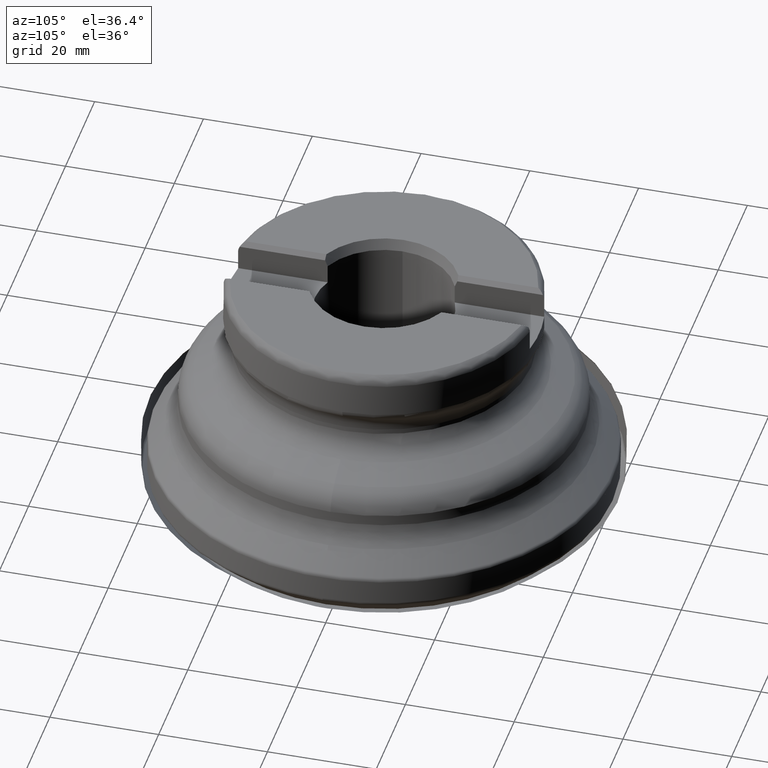
[diagram: clean part render]
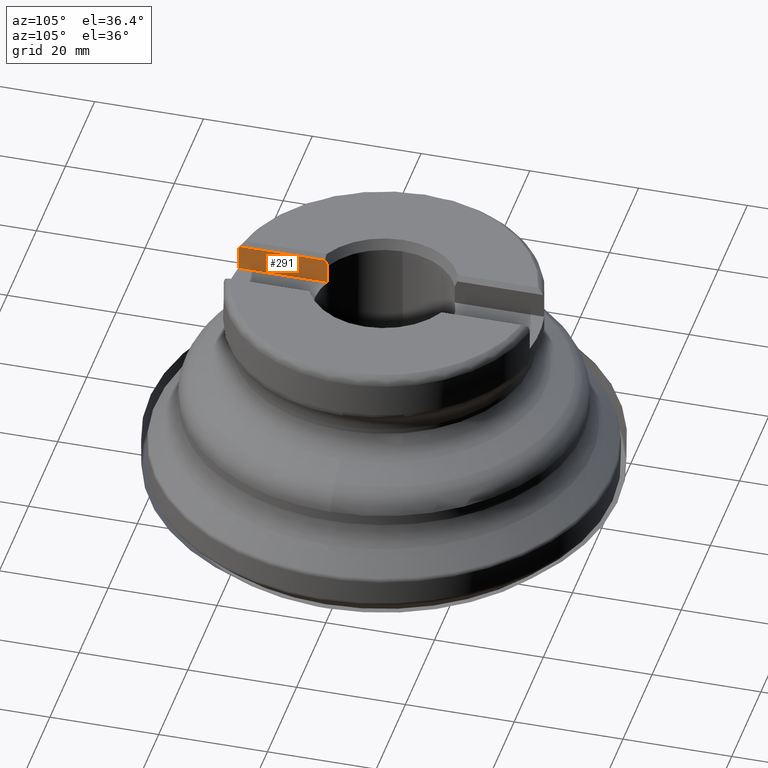
[diagram: same view with one face highlighted and labeled with its STEP entity id]
A machine part, auxiliary view. The second image highlights one B-rep face of the part: STEP entity #291.
In plain terms, the highlighted planar face has unit normal (1, -0, -0).
Its self-contained STEP definition (entity closure, byte-faithful):
#175=PLANE('',#1093);
#189=FACE_OUTER_BOUND('',#493,.T.);
#210=LINE('',#1517,#238);
#215=LINE('',#1540,#243);
#222=LINE('',#1822,#250);
#223=LINE('',#1823,#251);
#238=VECTOR('',#1159,1.);
#243=VECTOR('',#1178,1.);
#250=VECTOR('',#1281,1.);
#251=VECTOR('',#1282,1.);
#291=ADVANCED_FACE('',(#189),#175,.T.);
#493=EDGE_LOOP('',(#644,#645,#646,#647,#648,#649));
#644=ORIENTED_EDGE('',*,*,#902,.T.);
#645=ORIENTED_EDGE('',*,*,#903,.T.);
#646=ORIENTED_EDGE('',*,*,#862,.F.);
#647=ORIENTED_EDGE('',*,*,#844,.T.);
#648=ORIENTED_EDGE('',*,*,#904,.T.);
#649=ORIENTED_EDGE('',*,*,#855,.T.);
#763=VERTEX_POINT('',#1516);
#764=VERTEX_POINT('',#1518);
#774=VERTEX_POINT('',#1539);
#775=VERTEX_POINT('',#1541);
#780=VERTEX_POINT('',#1588);
#815=VERTEX_POINT('',#1821);
#844=EDGE_CURVE('',#764,#763,#210,.T.);
#855=EDGE_CURVE('',#775,#774,#215,.T.);
#862=EDGE_CURVE('',#764,#780,#1009,.T.);
#902=EDGE_CURVE('',#774,#815,#1020,.T.);
#903=EDGE_CURVE('',#815,#780,#222,.T.);
#904=EDGE_CURVE('',#763,#775,#223,.T.);
#1009=B_SPLINE_CURVE_WITH_KNOTS('',3,(#1578,#1579,#1580,#1581,#1582,#1583,
#1584,#1585,#1586,#1587),.UNSPECIFIED.,.F.,.F.,(4,3,3,4),(0.,0.246029742893053,
0.880478249024065,1.),.UNSPECIFIED.);
#1020=B_SPLINE_CURVE_WITH_KNOTS('',3,(#1817,#1818,#1819,#1820),
 .UNSPECIFIED.,.F.,.F.,(4,4),(0.,1.),.UNSPECIFIED.);
#1093=AXIS2_PLACEMENT_3D('',#1824,#1283,#1284);
#1159=DIRECTION('',(-1.17145536458253E-15,-1.33226762955019E-15,-1.));
#1178=DIRECTION('',(1.17145536458253E-15,1.33226762955019E-15,1.));
#1281=DIRECTION('',(-3.16413562018169E-15,-1.,1.33226762955019E-15));
#1282=DIRECTION('',(3.16413562018169E-15,1.,-1.33226762955019E-15));
#1283=DIRECTION('',(1.,-3.1641356201817E-15,-6.99925371149012E-16));
#1284=DIRECTION('',(6.99960922556642E-16,1.33226762955019E-15,1.));
#1516=CARTESIAN_POINT('',(-4.96500000000004,-28.1403518101675,38.89));
#1517=CARTESIAN_POINT('',(-4.96500000000004,-28.1403518101675,44.65));
#1518=CARTESIAN_POINT('',(-4.96500000000004,-28.1403518101675,42.65));
#1539=CARTESIAN_POINT('',(-4.96499999999999,-11.6892589585482,42.45));
#1540=CARTESIAN_POINT('',(-4.96499999999999,-11.6892589585482,44.65));
#1541=CARTESIAN_POINT('',(-4.96499999999999,-11.6892589585482,38.89));
#1578=CARTESIAN_POINT('',(-4.96500000000004,-28.1403518101675,42.65));
#1579=CARTESIAN_POINT('',(-4.96500000000004,-28.1403518101675,42.7359644180056));
#1580=CARTESIAN_POINT('',(-4.96500000000004,-28.134698989192,42.8221122524937));
#1581=CARTESIAN_POINT('',(-4.96500000000004,-28.1234697904533,42.9073401015732));
#1582=CARTESIAN_POINT('',(-4.96500000000004,-28.0946626352467,43.1259818705447));
#1583=CARTESIAN_POINT('',(-4.96500000000004,-28.0277138374406,43.3426188793115));
#1584=CARTESIAN_POINT('',(-4.96500000000004,-27.9284020530047,43.5395230306193));
#1585=CARTESIAN_POINT('',(-4.96500000000004,-27.9095176743993,43.5769648363768));
#1586=CARTESIAN_POINT('',(-4.96500000000004,-27.8894372959115,43.613826830571));
#1587=CARTESIAN_POINT('',(-4.96500000000004,-27.8682238476441,43.6499999999966));
#1588=CARTESIAN_POINT('',(-4.96500000000004,-27.8682238476441,43.6499999999966));
#1817=CARTESIAN_POINT('',(-4.96499999999999,-11.6892589585482,42.45));
#1818=CARTESIAN_POINT('',(-4.96499999999999,-11.8473720014206,42.8498389400155));
#1819=CARTESIAN_POINT('',(-4.96499999999999,-12.0050617418596,43.2498454756781));
#1820=CARTESIAN_POINT('',(-4.96499999999999,-12.1623743889791,43.65));
#1821=CARTESIAN_POINT('',(-4.96499999999999,-12.1623743889791,43.65));
#1822=CARTESIAN_POINT('',(-4.96500000000003,-26.9939714708643,43.65));
#1823=CARTESIAN_POINT('',(-4.96499999999983,38.0000000000001,38.89));
#1824=CARTESIAN_POINT('',(-4.96499999999983,38.0000000000001,38.89));